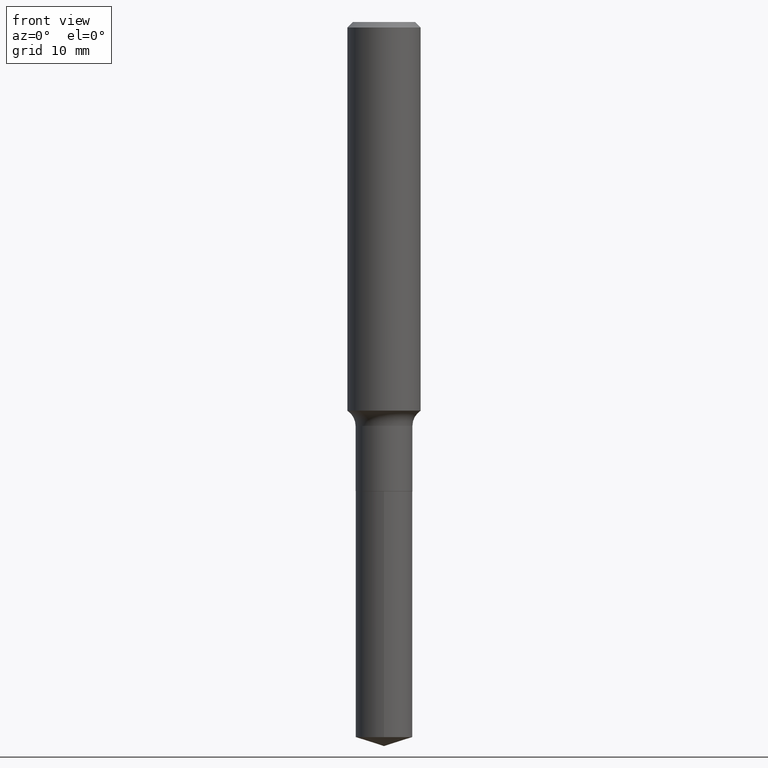
[diagram: clean part render]
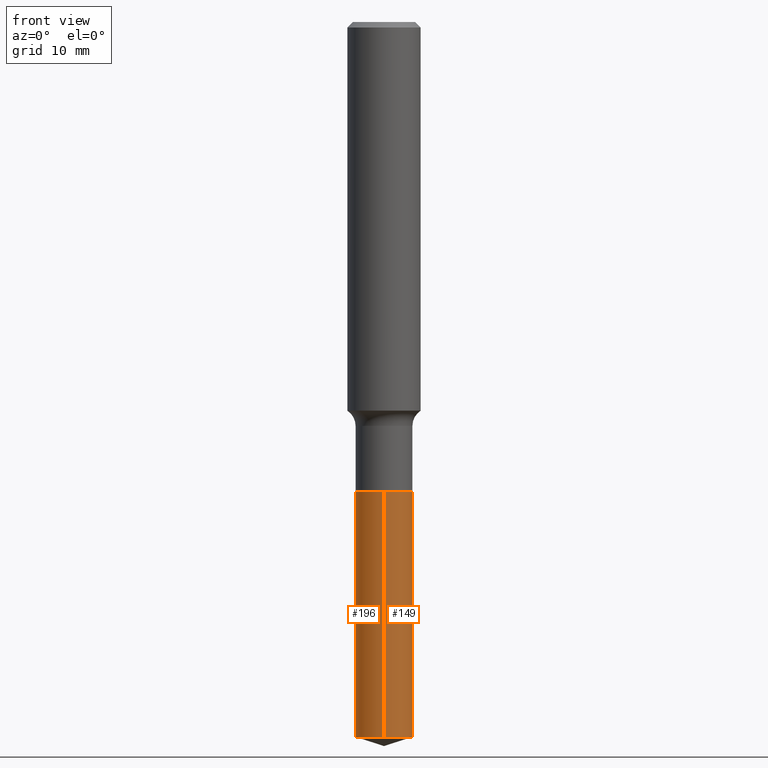
[diagram: same view with one multi-face feature highlighted, each face labeled with its STEP entity id]
A machine part, front view. The highlighted faces form ONE feature: a constant-radius fillet chain: 2 tangent blend faces with common blend radius 3.1001 mm. The faces share edges in the B-rep.
Their STEP definitions:
[1] entity #149 (Cylinder):
#8 = EDGE_LOOP ( 'NONE', ( #329, #467, #327, #261 ) ) ;
#17 = CARTESIAN_POINT ( 'NONE',  ( 7.511731124286893286E-29, -1.072492965788716522E-14, -3.071717782817320330 ) ) ;
#27 = VECTOR ( 'NONE', #260, 39.37007874015748143 ) ;
#33 = EDGE_CURVE ( 'NONE', #54, #397, #109, .T. ) ;
#54 = VERTEX_POINT ( 'NONE', #400 ) ;
#56 = CARTESIAN_POINT ( 'NONE',  ( 4.929331472627379761E-29, -7.037778934706128744E-15, -2.015699999999999825 ) ) ;
#83 = EDGE_CURVE ( 'NONE', #214, #294, #234, .T. ) ;
#109 = CIRCLE ( 'NONE', #372, 0.1220500000000000057 ) ;
#120 = DIRECTION ( 'NONE',  ( -2.445413035346810779E-29, 3.491561205857906805E-15, 1.000000000000000000 ) ) ;
#146 = CARTESIAN_POINT ( 'NONE',  ( -8.522705948115595040E-16, -0.1220500000000070279, -2.015699999999999381 ) ) ;
#149 = ADVANCED_FACE ( 'NONE', ( #440 ), #326, .T. ) ;
#151 = AXIS2_PLACEMENT_3D ( 'NONE', #56, #369, #335 ) ;
#153 = CARTESIAN_POINT ( 'NONE',  ( 8.672174089952514240E-16, 0.1220499999999929697, -2.015700000000000713 ) ) ;
#160 = DIRECTION ( 'NONE',  ( -2.445413035346810779E-29, 3.491561205857907199E-15, 1.000000000000000000 ) ) ;
#190 = CARTESIAN_POINT ( 'NONE',  ( 8.672174089952774564E-16, 0.1220499999999929697, -2.015700000000000713 ) ) ;
#214 = VERTEX_POINT ( 'NONE', #477 ) ;
#234 = CIRCLE ( 'NONE', #151, 0.1220500000000000057 ) ;
#260 = DIRECTION ( 'NONE',  ( -2.445413035346810779E-29, 3.491561205857906805E-15, 1.000000000000000000 ) ) ;
#261 = ORIENTED_EDGE ( 'NONE', *, *, #365, .F. ) ;
#290 = DIRECTION ( 'NONE',  ( -6.982962677686265922E-15, -1.000000000000000000, 4.476604659834925490E-15 ) ) ;
#294 = VERTEX_POINT ( 'NONE', #190 ) ;
#298 = LINE ( 'NONE', #146, #27 ) ;
#302 = DIRECTION ( 'NONE',  ( -2.445413035346810779E-29, 3.491561205857907199E-15, 1.000000000000000000 ) ) ;
#307 = DIRECTION ( 'NONE',  ( -6.982962677686265922E-15, -1.000000000000000000, 4.476604659834925490E-15 ) ) ;
#326 = CYLINDRICAL_SURFACE ( 'NONE', #418, 0.1220500000000000057 ) ;
#327 = ORIENTED_EDGE ( 'NONE', *, *, #83, .F. ) ;
#329 = ORIENTED_EDGE ( 'NONE', *, *, #33, .T. ) ;
#335 = DIRECTION ( 'NONE',  ( -6.982962677686265922E-15, -1.000000000000000000, 4.476604659834925490E-15 ) ) ;
#365 = EDGE_CURVE ( 'NONE', #54, #214, #298, .T. ) ;
#369 = DIRECTION ( 'NONE',  ( -2.445413035346810779E-29, 3.491561205857907199E-15, 1.000000000000000000 ) ) ;
#372 = AXIS2_PLACEMENT_3D ( 'NONE', #17, #302, #307 ) ;
#378 = CARTESIAN_POINT ( 'NONE',  ( 8.672174089952774564E-16, 0.1220499999999892921, -3.071717782817321218 ) ) ;
#397 = VERTEX_POINT ( 'NONE', #378 ) ;
#400 = CARTESIAN_POINT ( 'NONE',  ( -8.522705948115337675E-16, -0.1220500000000107610, -3.071717782817319886 ) ) ;
#417 = EDGE_CURVE ( 'NONE', #397, #294, #461, .T. ) ;
#418 = AXIS2_PLACEMENT_3D ( 'NONE', #452, #160, #290 ) ;
#440 = FACE_OUTER_BOUND ( 'NONE', #8, .T. ) ;
#452 = CARTESIAN_POINT ( 'NONE',  ( 4.929331472627379761E-29, -7.037778934706128744E-15, -2.015699999999999825 ) ) ;
#461 = LINE ( 'NONE', #153, #468 ) ;
#467 = ORIENTED_EDGE ( 'NONE', *, *, #417, .T. ) ;
#468 = VECTOR ( 'NONE', #120, 39.37007874015748143 ) ;
#477 = CARTESIAN_POINT ( 'NONE',  ( -8.522705948115595040E-16, -0.1220500000000070279, -2.015699999999999381 ) ) ;
[2] entity #196 (Cylinder):
#4 = CARTESIAN_POINT ( 'NONE',  ( 7.511731124286893286E-29, -1.072492965788716522E-14, -3.071717782817320330 ) ) ;
#18 = AXIS2_PLACEMENT_3D ( 'NONE', #193, #386, #117 ) ;
#23 = DIRECTION ( 'NONE',  ( -2.445413035346810779E-29, 3.491561205857907199E-15, 1.000000000000000000 ) ) ;
#27 = VECTOR ( 'NONE', #260, 39.37007874015748143 ) ;
#43 = AXIS2_PLACEMENT_3D ( 'NONE', #4, #388, #123 ) ;
#47 = ORIENTED_EDGE ( 'NONE', *, *, #417, .F. ) ;
#54 = VERTEX_POINT ( 'NONE', #400 ) ;
#81 = AXIS2_PLACEMENT_3D ( 'NONE', #143, #23, #227 ) ;
#117 = DIRECTION ( 'NONE',  ( -6.982962677686265922E-15, -1.000000000000000000, 4.476604659834925490E-15 ) ) ;
#120 = DIRECTION ( 'NONE',  ( -2.445413035346810779E-29, 3.491561205857906805E-15, 1.000000000000000000 ) ) ;
#123 = DIRECTION ( 'NONE',  ( -6.982962677686265922E-15, -1.000000000000000000, 4.476604659834925490E-15 ) ) ;
#143 = CARTESIAN_POINT ( 'NONE',  ( 4.929331472627379761E-29, -7.037778934706128744E-15, -2.015699999999999825 ) ) ;
#146 = CARTESIAN_POINT ( 'NONE',  ( -8.522705948115595040E-16, -0.1220500000000070279, -2.015699999999999381 ) ) ;
#153 = CARTESIAN_POINT ( 'NONE',  ( 8.672174089952514240E-16, 0.1220499999999929697, -2.015700000000000713 ) ) ;
#167 = ORIENTED_EDGE ( 'NONE', *, *, #365, .T. ) ;
#190 = CARTESIAN_POINT ( 'NONE',  ( 8.672174089952774564E-16, 0.1220499999999929697, -2.015700000000000713 ) ) ;
#193 = CARTESIAN_POINT ( 'NONE',  ( 4.929331472627379761E-29, -7.037778934706128744E-15, -2.015699999999999825 ) ) ;
#196 = ADVANCED_FACE ( 'NONE', ( #218 ), #225, .T. ) ;
#207 = ORIENTED_EDGE ( 'NONE', *, *, #427, .T. ) ;
#214 = VERTEX_POINT ( 'NONE', #477 ) ;
#218 = FACE_OUTER_BOUND ( 'NONE', #425, .T. ) ;
#225 = CYLINDRICAL_SURFACE ( 'NONE', #81, 0.1220500000000000057 ) ;
#227 = DIRECTION ( 'NONE',  ( -6.982962677686265922E-15, -1.000000000000000000, 4.476604659834925490E-15 ) ) ;
#241 = EDGE_CURVE ( 'NONE', #294, #214, #242, .T. ) ;
#242 = CIRCLE ( 'NONE', #18, 0.1220500000000000057 ) ;
#260 = DIRECTION ( 'NONE',  ( -2.445413035346810779E-29, 3.491561205857906805E-15, 1.000000000000000000 ) ) ;
#263 = CIRCLE ( 'NONE', #43, 0.1220500000000000057 ) ;
#294 = VERTEX_POINT ( 'NONE', #190 ) ;
#298 = LINE ( 'NONE', #146, #27 ) ;
#332 = ORIENTED_EDGE ( 'NONE', *, *, #241, .F. ) ;
#365 = EDGE_CURVE ( 'NONE', #54, #214, #298, .T. ) ;
#378 = CARTESIAN_POINT ( 'NONE',  ( 8.672174089952774564E-16, 0.1220499999999892921, -3.071717782817321218 ) ) ;
#386 = DIRECTION ( 'NONE',  ( -2.445413035346810779E-29, 3.491561205857907199E-15, 1.000000000000000000 ) ) ;
#388 = DIRECTION ( 'NONE',  ( -2.445413035346810779E-29, 3.491561205857907199E-15, 1.000000000000000000 ) ) ;
#397 = VERTEX_POINT ( 'NONE', #378 ) ;
#400 = CARTESIAN_POINT ( 'NONE',  ( -8.522705948115337675E-16, -0.1220500000000107610, -3.071717782817319886 ) ) ;
#417 = EDGE_CURVE ( 'NONE', #397, #294, #461, .T. ) ;
#425 = EDGE_LOOP ( 'NONE', ( #47, #207, #167, #332 ) ) ;
#427 = EDGE_CURVE ( 'NONE', #397, #54, #263, .T. ) ;
#461 = LINE ( 'NONE', #153, #468 ) ;
#468 = VECTOR ( 'NONE', #120, 39.37007874015748143 ) ;
#477 = CARTESIAN_POINT ( 'NONE',  ( -8.522705948115595040E-16, -0.1220500000000070279, -2.015699999999999381 ) ) ;